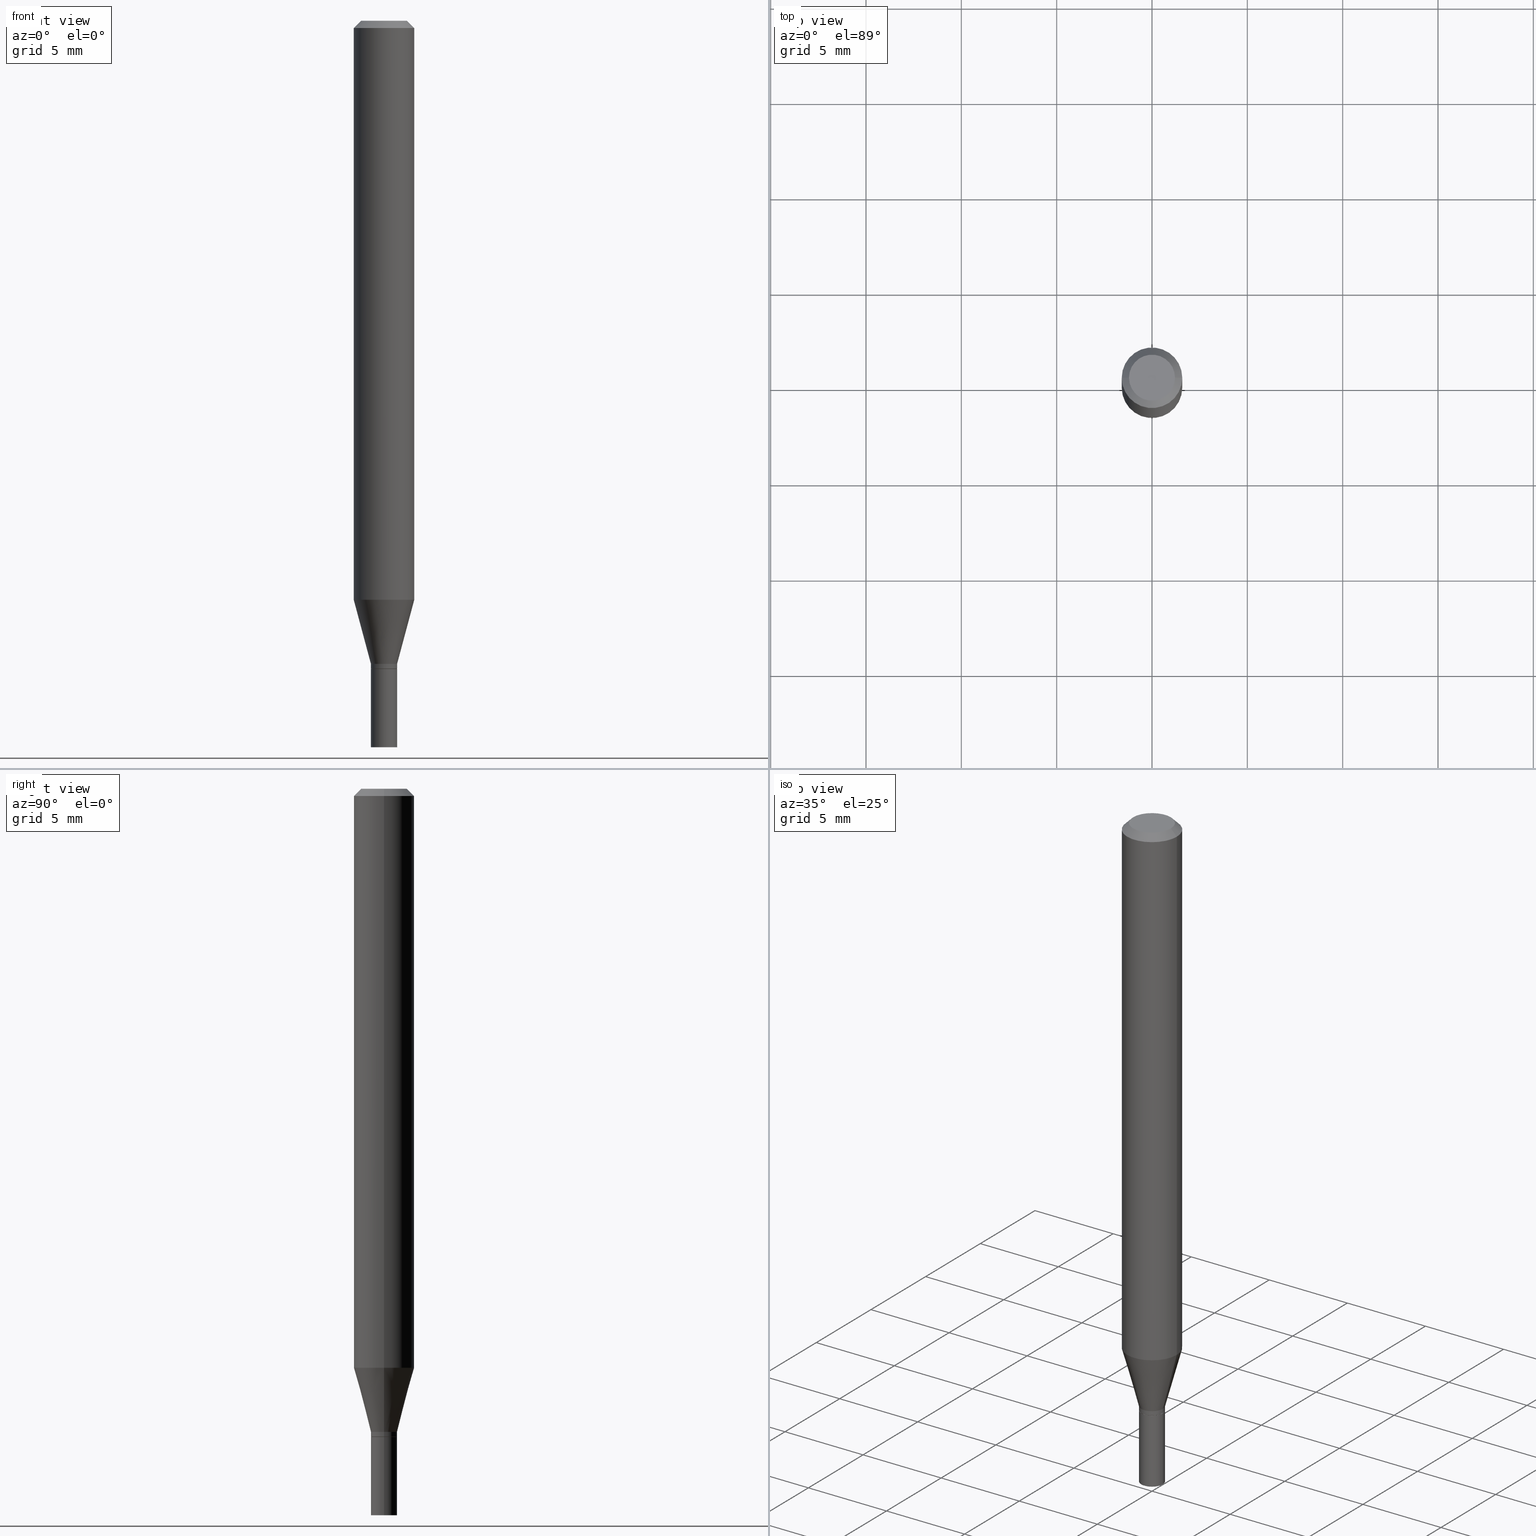
[diagram: canonical four-view strip — front | top / right | iso, engineering-drawing reading convention]
A machine part, canonical four-view strip (front | top / right | iso — engineering-drawing reading convention). The complete STEP part file that produces these views, byte-faithful:
ISO-10303-21;
HEADER;
FILE_DESCRIPTION (( 'STEP AP203' ),
    '1' );
FILE_NAME ('00563.STEP',
    '2024-03-19T21:43:39',
    ( '' ),
    ( '' ),
    'SwSTEP 2.0',
    'SolidWorks 2023',
    '' );
FILE_SCHEMA (( 'CONFIG_CONTROL_DESIGN' ));
ENDSEC;

DATA;
#1 = APPROVAL_STATUS ( 'not_yet_approved' ) ;
#2 = EDGE_CURVE ( 'NONE', #42, #402, #408, .T. ) ;
#3 = DIRECTION ( 'NONE',  ( -0.2588190451025207395, 5.211531920934546309E-15, 0.9659258262890682012 ) ) ;
#4 = ORIENTED_EDGE ( 'NONE', *, *, #2, .F. ) ;
#5 = AXIS2_PLACEMENT_3D ( 'NONE', #310, #301, #225 ) ;
#6 = CARTESIAN_POINT ( 'NONE',  ( 3.247582574613861342E-29, -4.636687217983698072E-15, -1.328000000000000069 ) ) ;
#7 = ORIENTED_EDGE ( 'NONE', *, *, #36, .F. ) ;
#8 = DIRECTION ( 'NONE',  ( -2.445468806185136877E-29, 3.491481338843145188E-15, 1.000000000000000000 ) ) ;
#9 = ORIENTED_EDGE ( 'NONE', *, *, #396, .T. ) ;
#10 = PLANE ( 'NONE',  #290 ) ;
#11 = ORIENTED_EDGE ( 'NONE', *, *, #101, .F. ) ;
#12 = DIRECTION ( 'NONE',  ( 2.438088387897960049E-29, -3.491481338843145188E-15, -1.000000000000000000 ) ) ;
#13 = AXIS2_PLACEMENT_3D ( 'NONE', #224, #446, #450 ) ;
#14 = VECTOR ( 'NONE', #316, 39.37007874015748854 ) ;
#15 = CARTESIAN_POINT ( 'NONE',  ( -5.757869704046039586E-45, 8.220711943787967025E-31, 2.354505479474161294E-16 ) ) ;
#16 = DIRECTION ( 'NONE',  ( 1.000000000000000000, -6.982962677686261189E-15, 0.000000000000000000 ) ) ;
#17 = DIRECTION ( 'NONE',  ( -2.445468806185136597E-29, 3.491481338843145583E-15, 1.000000000000000000 ) ) ;
#18 = EDGE_CURVE ( 'NONE', #124, #442, #256, .T. ) ;
#19 = DIRECTION ( 'NONE',  ( 1.000000000000000000, -6.982962677686262766E-15, 0.000000000000000000 ) ) ;
#20 = CYLINDRICAL_SURFACE ( 'NONE', #33, 0.02699999999999992684 ) ;
#21 = DIRECTION ( 'NONE',  ( -1.000000000000000000, 6.982962677686266711E-15, 0.000000000000000000 ) ) ;
#22 = VECTOR ( 'NONE', #198, 39.37007874015748143 ) ;
#23 = DIRECTION ( 'NONE',  ( -2.445468806185136597E-29, 3.491481338843145583E-15, 1.000000000000000000 ) ) ;
#24 = APPROVAL ( #458, 'UNSPECIFIED' ) ;
#25 = CARTESIAN_POINT ( 'NONE',  ( -0.02699999999999992337, -4.478009752047480997E-15, -1.337500000000000133 ) ) ;
#26 = EDGE_LOOP ( 'NONE', ( #414, #274, #409, #326 ) ) ;
#27 = CARTESIAN_POINT ( 'NONE',  ( 0.02649999999999999925, -4.856650542330814622E-15, -1.338000000000000078 ) ) ;
#28 = VECTOR ( 'NONE', #440, 39.37007874015748143 ) ;
#29 = APPLICATION_PROTOCOL_DEFINITION ( 'international standard', 'config_control_design', 1994, #110 ) ;
#30 = DIRECTION ( 'NONE',  ( 1.000000000000000000, -6.982962677686266711E-15, 0.000000000000000000 ) ) ;
#31 = CALENDAR_DATE ( 2024, 19, 3 ) ;
#32 = APPROVAL_DATE_TIME ( #113, #323 ) ;
#33 = AXIS2_PLACEMENT_3D ( 'NONE', #94, #235, #447 ) ;
#34 = AXIS2_PLACEMENT_3D ( 'NONE', #350, #23, #244 ) ;
#35 = EDGE_LOOP ( 'NONE', ( #266, #77, #74, #44 ) ) ;
#36 = EDGE_CURVE ( 'NONE', #402, #146, #220, .T. ) ;
#37 = PERSON_AND_ORGANIZATION_ROLE ( 'design_owner' ) ;
#38 = DIRECTION ( 'NONE',  ( -2.445468806185136877E-29, 3.491481338843145188E-15, 1.000000000000000000 ) ) ;
#39 = CONICAL_SURFACE ( 'NONE', #79, 0.02649999999999999925, 0.7853981633974739252 ) ;
#40 = CARTESIAN_POINT ( 'NONE',  ( 0.02699999999999999969, -1.885399922975291894E-16, 1.316567729464902510E-30 ) ) ;
#41 = FACE_OUTER_BOUND ( 'NONE', #152, .T. ) ;
#42 = VERTEX_POINT ( 'NONE', #252 ) ;
#43 = CARTESIAN_POINT ( 'NONE',  ( -0.04749999999999999362, 3.578768372314215436E-16, 2.354505479474137135E-16 ) ) ;
#44 = ORIENTED_EDGE ( 'NONE', *, *, #396, .F. ) ;
#45 = DIRECTION ( 'NONE',  ( -2.445468806185136877E-29, 3.491481338843145188E-15, 1.000000000000000000 ) ) ;
#46 = DIRECTION ( 'NONE',  ( 1.000000000000000000, -6.982962677686267499E-15, 4.852736867747366768E-29 ) ) ;
#47 = ADVANCED_FACE ( 'NONE', ( #41 ), #381, .T. ) ;
#48 = APPLICATION_CONTEXT ( 'configuration controlled 3d designs of mechanical parts and assemblies' ) ;
#49 = PLANE ( 'NONE',  #375 ) ;
#50 = VECTOR ( 'NONE', #3, 39.37007874015748854 ) ;
#51 = VECTOR ( 'NONE', #96, 39.37007874015748143 ) ;
#52 = ADVANCED_FACE ( 'NONE', ( #196 ), #20, .T. ) ;
#53 = DIRECTION ( 'NONE',  ( -2.438088387897960049E-29, 3.491481338843145188E-15, 1.000000000000000000 ) ) ;
#54 = DIRECTION ( 'NONE',  ( 1.000000000000000000, -6.982962677686279332E-15, 0.000000000000000000 ) ) ;
#55 = CARTESIAN_POINT ( 'NONE',  ( 0.02699999999999992684, -4.825227210281226768E-15, -1.328000000000000069 ) ) ;
#56 = ADVANCED_FACE ( 'NONE', ( #238 ), #321, .T. ) ;
#57 = CIRCLE ( 'NONE', #114, 0.02699999999999992684 ) ;
#58 = DIRECTION ( 'NONE',  ( -2.445468806185136597E-29, 3.491481338843145583E-15, 1.000000000000000000 ) ) ;
#59 = FACE_OUTER_BOUND ( 'NONE', #373, .T. ) ;
#60 = FACE_OUTER_BOUND ( 'NONE', #370, .T. ) ;
#61 = PERSON_AND_ORGANIZATION_ROLE ( 'classification_officer' ) ;
#62 = AXIS2_PLACEMENT_3D ( 'NONE', #390, #67, #19 ) ;
#63 = APPROVAL_PERSON_ORGANIZATION ( #431, #323, #100 ) ;
#64 = COORDINATED_UNIVERSAL_TIME_OFFSET ( 5, 0, .BEHIND. ) ;
#65 = ORIENTED_EDGE ( 'NONE', *, *, #465, .F. ) ;
#66 = COORDINATED_UNIVERSAL_TIME_OFFSET ( 5, 0, .BEHIND. ) ;
#67 = DIRECTION ( 'NONE',  ( -2.445468806185136597E-29, 3.491481338843145583E-15, 1.000000000000000000 ) ) ;
#68 = CC_DESIGN_PERSON_AND_ORGANIZATION_ASSIGNMENT ( #295, #37, ( #160 ) ) ;
#69 = AXIS2_PLACEMENT_3D ( 'NONE', #202, #428, #139 ) ;
#70 = CARTESIAN_POINT ( 'NONE',  ( 3.247582574613861342E-29, -4.636687217983698072E-15, -1.328000000000000069 ) ) ;
#71 = LOCAL_TIME ( 17, 43, 39.00000000000000000, #147 ) ;
#72 = ORIENTED_EDGE ( 'NONE', *, *, #379, .F. ) ;
#73 = ORIENTED_EDGE ( 'NONE', *, *, #327, .T. ) ;
#74 = ORIENTED_EDGE ( 'NONE', *, *, #88, .F. ) ;
#75 = FACE_OUTER_BOUND ( 'NONE', #318, .T. ) ;
#76 = ORIENTED_EDGE ( 'NONE', *, *, #427, .T. ) ;
#77 = ORIENTED_EDGE ( 'NONE', *, *, #2, .T. ) ;
#78 = ORIENTED_EDGE ( 'NONE', *, *, #382, .T. ) ;
#79 = AXIS2_PLACEMENT_3D ( 'NONE', #343, #236, #137 ) ;
#80 = LINE ( 'NONE', #223, #248 ) ;
#81 = LOCAL_TIME ( 17, 43, 39.00000000000000000, #141 ) ;
#82 = CARTESIAN_POINT ( 'NONE',  ( 0.06250000000000000000, -4.888073874380388472E-16, -0.01499999999999999944 ) ) ;
#83 = ORIENTED_EDGE ( 'NONE', *, *, #382, .F. ) ;
#84 = DIRECTION ( 'NONE',  ( -2.445468806185136597E-29, 3.491481338843145583E-15, 1.000000000000000000 ) ) ;
#85 = ADVANCED_FACE ( 'NONE', ( #243 ), #131, .T. ) ;
#86 = DIMENSIONAL_EXPONENTS ( 1.000000000000000000, 0.000000000000000000, 0.000000000000000000, 0.000000000000000000, 0.000000000000000000, 0.000000000000000000, 0.000000000000000000 ) ;
#87 = CARTESIAN_POINT ( 'NONE',  ( 0.02699999999999999969, -5.425762000562247662E-15, -1.500000000000000222 ) ) ;
#88 = EDGE_CURVE ( 'NONE', #146, #402, #240, .T. ) ;
#89 = EDGE_LOOP ( 'NONE', ( #367, #453, #303, #270 ) ) ;
#90 =( LENGTH_UNIT ( ) NAMED_UNIT ( * ) SI_UNIT ( $, .METRE. ) );
#91 = VECTOR ( 'NONE', #380, 39.37007874015748143 ) ;
#92 = DIRECTION ( 'NONE',  ( -2.445468806185136597E-29, 3.491481338843145583E-15, 1.000000000000000000 ) ) ;
#93 = CARTESIAN_POINT ( 'NONE',  ( 0.02649999999999999925, -4.856650542330814622E-15, -1.338000000000000078 ) ) ;
#94 = CARTESIAN_POINT ( 'NONE',  ( 0.000000000000000000, 0.000000000000000000, 0.000000000000000000 ) ) ;
#95 =( NAMED_UNIT ( * ) SI_UNIT ( $, .STERADIAN. ) SOLID_ANGLE_UNIT ( ) );
#96 = DIRECTION ( 'NONE',  ( -2.445468806185136877E-29, 3.491481338843145188E-15, 1.000000000000000000 ) ) ;
#97 = AXIS2_PLACEMENT_3D ( 'NONE', #231, #53, #424 ) ;
#98 = CC_DESIGN_APPROVAL ( #232, ( #205 ) ) ;
#99 = LINE ( 'NONE', #55, #14 ) ;
#100 = APPROVAL_ROLE ( '' ) ;
#101 = EDGE_CURVE ( 'NONE', #260, #250, #336, .T. ) ;
#102 = PERSON_AND_ORGANIZATION ( #333, #199 ) ;
#103 = AXIS2_PLACEMENT_3D ( 'NONE', #284, #395, #200 ) ;
#104 = LOCAL_TIME ( 17, 43, 39.00000000000000000, #66 ) ;
#105 = EDGE_CURVE ( 'NONE', #451, #368, #344, .T. ) ;
#106 = EDGE_LOOP ( 'NONE', ( #463, #65 ) ) ;
#107 = CARTESIAN_POINT ( 'NONE',  ( 3.668203209277704895E-29, -5.237222008264718177E-15, -1.500000000000000222 ) ) ;
#108 = CC_DESIGN_DATE_AND_TIME_ASSIGNMENT ( #292, #178, ( #376 ) ) ;
#109 = ORIENTED_EDGE ( 'NONE', *, *, #126, .T. ) ;
#110 = APPLICATION_CONTEXT ( 'configuration controlled 3d designs of mechanical parts and assemblies' ) ;
#111 = ORIENTED_EDGE ( 'NONE', *, *, #88, .T. ) ;
#112 = VERTEX_POINT ( 'NONE', #43 ) ;
#113 = DATE_AND_TIME ( #145, #286 ) ;
#114 = AXIS2_PLACEMENT_3D ( 'NONE', #6, #84, #337 ) ;
#115 = ORIENTED_EDGE ( 'NONE', *, *, #101, .T. ) ;
#116 = DIRECTION ( 'NONE',  ( -2.445468806185136597E-29, 3.491481338843145583E-15, 1.000000000000000000 ) ) ;
#117 = LINE ( 'NONE', #125, #278 ) ;
#118 = VERTEX_POINT ( 'NONE', #82 ) ;
#119 = PLANE ( 'NONE',  #298 ) ;
#120 = DESIGN_CONTEXT ( 'detailed design', #110, 'design' ) ;
#121 = EDGE_CURVE ( 'NONE', #219, #339, #305, .T. ) ;
#122 = LINE ( 'NONE', #267, #191 ) ;
#123 = AXIS2_PLACEMENT_3D ( 'NONE', #168, #320, #389 ) ;
#124 = VERTEX_POINT ( 'NONE', #272 ) ;
#125 = CARTESIAN_POINT ( 'NONE',  ( -0.06250000000000000000, 3.840629472727444916E-16, -0.01499999999999999944 ) ) ;
#126 = EDGE_CURVE ( 'NONE', #442, #124, #364, .T. ) ;
#127 = FACE_OUTER_BOUND ( 'NONE', #263, .T. ) ;
#128 = DIRECTION ( 'NONE',  ( -2.445468806185136597E-29, 3.491481338843145583E-15, 1.000000000000000000 ) ) ;
#129 = ORIENTED_EDGE ( 'NONE', *, *, #154, .F. ) ;
#130 = CARTESIAN_POINT ( 'NONE',  ( 3.668203209277705088E-31, -5.237222008264718399E-17, -0.01499999999999999944 ) ) ;
#131 = CONICAL_SURFACE ( 'NONE', #462, 0.02699999999999992684, 0.2617993877991494633 ) ;
#132 = CARTESIAN_POINT ( 'NONE',  ( 3.272037262675712888E-29, -4.671602031372128143E-15, -1.338000000000000078 ) ) ;
#133 = LENGTH_MEASURE_WITH_UNIT ( LENGTH_MEASURE( 0.02539999999999999897 ), #90 );
#134 = CARTESIAN_POINT ( 'NONE',  ( -5.757869704046039586E-45, 8.220711943787967025E-31, 2.354505479474161294E-16 ) ) ;
#135 = FACE_OUTER_BOUND ( 'NONE', #253, .T. ) ;
#136 = EDGE_CURVE ( 'NONE', #188, #118, #210, .T. ) ;
#137 = DIRECTION ( 'NONE',  ( 1.000000000000000000, -6.982962677686277755E-15, 0.000000000000000000 ) ) ;
#138 = EDGE_CURVE ( 'NONE', #257, #42, #264, .T. ) ;
#139 = DIRECTION ( 'NONE',  ( 1.000000000000000000, -6.982962677686280910E-15, 0.000000000000000000 ) ) ;
#140 = PERSON_AND_ORGANIZATION_ROLE ( 'creator' ) ;
#141 = COORDINATED_UNIVERSAL_TIME_OFFSET ( 5, 0, .BEHIND. ) ;
#142 = AXIS2_PLACEMENT_3D ( 'NONE', #15, #452, #46 ) ;
#143 = CC_DESIGN_PERSON_AND_ORGANIZATION_ASSIGNMENT ( #403, #288, ( #205 ) ) ;
#144 = LOCAL_TIME ( 17, 43, 39.00000000000000000, #64 ) ;
#145 = CALENDAR_DATE ( 2024, 19, 3 ) ;
#146 = VERTEX_POINT ( 'NONE', #195 ) ;
#147 = COORDINATED_UNIVERSAL_TIME_OFFSET ( 5, 0, .BEHIND. ) ;
#148 = APPROVAL_DATE_TIME ( #325, #24 ) ;
#149 = DIRECTION ( 'NONE',  ( -2.445468806185136597E-29, 3.491481338843145583E-15, 1.000000000000000000 ) ) ;
#150 = CIRCLE ( 'NONE', #142, 0.04749999999999999362 ) ;
#151 = DIRECTION ( 'NONE',  ( 1.000000000000000000, -6.982962677686265922E-15, 4.876176775795936353E-29 ) ) ;
#152 = EDGE_LOOP ( 'NONE', ( #261, #365, #11, #404 ) ) ;
#153 = DIRECTION ( 'NONE',  ( 1.000000000000000000, -6.982962677686266711E-15, 4.876176775795935793E-29 ) ) ;
#154 = EDGE_CURVE ( 'NONE', #339, #219, #357, .T. ) ;
#155 = CYLINDRICAL_SURFACE ( 'NONE', #5, 0.02699999999999999969 ) ;
#156 = ADVANCED_FACE ( 'NONE', ( #60 ), #245, .T. ) ;
#157 = AXIS2_PLACEMENT_3D ( 'NONE', #448, #92, #16 ) ;
#158 = CARTESIAN_POINT ( 'NONE',  ( 0.06250000000000000000, -4.364351673553916694E-16, 3.047610484872459871E-30 ) ) ;
#159 = ORIENTED_EDGE ( 'NONE', *, *, #201, .F. ) ;
#160 = PRODUCT ( '00563', '00563', '', ( #251 ) ) ;
#161 = CARTESIAN_POINT ( 'NONE',  ( -0.02699999999999999969, -4.762565481163196334E-15, -1.338000000000000078 ) ) ;
#162 = DIRECTION ( 'NONE',  ( 1.000000000000000000, -6.982962677686266711E-15, 0.000000000000000000 ) ) ;
#163 = AXIS2_PLACEMENT_3D ( 'NONE', #399, #359, #30 ) ;
#164 = CARTESIAN_POINT ( 'NONE',  ( 3.272037262675712888E-29, -4.671602031372128143E-15, -1.338000000000000078 ) ) ;
#165 = EDGE_CURVE ( 'NONE', #42, #257, #57, .T. ) ;
#166 = DIRECTION ( 'NONE',  ( 1.000000000000000000, -6.982962677686277755E-15, 0.000000000000000000 ) ) ;
#167 = EDGE_CURVE ( 'NONE', #442, #42, #259, .T. ) ;
#168 = CARTESIAN_POINT ( 'NONE',  ( 3.272037262675712888E-29, -4.671602031372128143E-15, -1.338000000000000078 ) ) ;
#169 = AXIS2_PLACEMENT_3D ( 'NONE', #132, #233, #388 ) ;
#170 = APPROVAL_STATUS ( 'not_yet_approved' ) ;
#171 = DATE_AND_TIME ( #31, #71 ) ;
#172 = PERSON_AND_ORGANIZATION ( #333, #199 ) ;
#173 = ORIENTED_EDGE ( 'NONE', *, *, #311, .T. ) ;
#174 = AXIS2_PLACEMENT_3D ( 'NONE', #319, #455, #21 ) ;
#175 = CC_DESIGN_APPROVAL ( #24, ( #376 ) ) ;
#176 = ADVANCED_BREP_SHAPE_REPRESENTATION ( '00563', ( #430, #280, #306 ), #221 ) ;
#177 = ADVANCED_FACE ( 'NONE', ( #127 ), #49, .F. ) ;
#178 = DATE_TIME_ROLE ( 'classification_date' ) ;
#179 = CARTESIAN_POINT ( 'NONE',  ( 2.923587783542086622E-29, -4.174108523850133238E-15, -1.195512196331304677 ) ) ;
#180 = EDGE_CURVE ( 'NONE', #219, #260, #300, .T. ) ;
#181 = CARTESIAN_POINT ( 'NONE',  ( -0.02699999999999992684, 1.918465386552265303E-16, -1.328112474368820963E-30 ) ) ;
#182 = ORIENTED_EDGE ( 'NONE', *, *, #214, .F. ) ;
#183 = CYLINDRICAL_SURFACE ( 'NONE', #349, 0.06250000000000000000 ) ;
#184 = ORIENTED_EDGE ( 'NONE', *, *, #36, .T. ) ;
#185 = DIRECTION ( 'NONE',  ( -2.445468806185136597E-29, 3.491481338843145583E-15, 1.000000000000000000 ) ) ;
#186 = CC_DESIGN_PERSON_AND_ORGANIZATION_ASSIGNMENT ( #360, #61, ( #376 ) ) ;
#187 = ORIENTED_EDGE ( 'NONE', *, *, #438, .T. ) ;
#188 = VERTEX_POINT ( 'NONE', #340 ) ;
#189 = FACE_OUTER_BOUND ( 'NONE', #307, .T. ) ;
#190 = ORIENTED_EDGE ( 'NONE', *, *, #126, .F. ) ;
#191 = VECTOR ( 'NONE', #346, 39.37007874015748143 ) ;
#192 = LINE ( 'NONE', #226, #28 ) ;
#193 = CARTESIAN_POINT ( 'NONE',  ( 3.247582574613861342E-29, -4.636687217983698072E-15, -1.328000000000000069 ) ) ;
#194 = ORIENTED_EDGE ( 'NONE', *, *, #136, .F. ) ;
#195 = CARTESIAN_POINT ( 'NONE',  ( 0.06250000000000000000, -4.610543691205524908E-15, -1.195512196331304677 ) ) ;
#196 = FACE_OUTER_BOUND ( 'NONE', #26, .T. ) ;
#197 = CARTESIAN_POINT ( 'NONE',  ( 0.04749999999999999362, -4.035134999187574186E-16, 2.354505479474186932E-16 ) ) ;
#198 = DIRECTION ( 'NONE',  ( 0.7071067811865656694, -2.468850131082446387E-15, 0.7071067811865294761 ) ) ;
#199 = ORGANIZATION ( 'UNSPECIFIED', 'UNSPECIFIED', '' ) ;
#200 = DIRECTION ( 'NONE',  ( 1.000000000000000000, -6.982962677686266711E-15, 4.876176775795935793E-29 ) ) ;
#201 = EDGE_CURVE ( 'NONE', #339, #250, #369, .T. ) ;
#202 = CARTESIAN_POINT ( 'NONE',  ( 3.270814528272620647E-29, -4.669856290702708218E-15, -1.337500000000000133 ) ) ;
#203 = FACE_OUTER_BOUND ( 'NONE', #383, .T. ) ;
#204 = DIRECTION ( 'NONE',  ( 1.000000000000000000, 0.000000000000000000, 0.000000000000000000 ) ) ;
#205 = PRODUCT_DEFINITION_FORMATION_WITH_SPECIFIED_SOURCE ( 'ANY', '', #160, .NOT_KNOWN. ) ;
#206 = PERSON_AND_ORGANIZATION ( #333, #199 ) ;
#207 = CALENDAR_DATE ( 2024, 19, 3 ) ;
#208 = ORIENTED_EDGE ( 'NONE', *, *, #165, .F. ) ;
#209 = CLOSED_SHELL ( 'NONE', ( #47, #177, #255, #227 ) ) ;
#210 = CIRCLE ( 'NONE', #163, 0.06250000000000000000 ) ;
#211 = DIRECTION ( 'NONE',  ( -2.445468806185136597E-29, 3.491481338843145583E-15, 1.000000000000000000 ) ) ;
#212 = CALENDAR_DATE ( 2024, 19, 3 ) ;
#213 = CARTESIAN_POINT ( 'NONE',  ( -0.02699999999999992684, -4.444840679328471640E-15, -1.328000000000000069 ) ) ;
#214 = EDGE_CURVE ( 'NONE', #112, #188, #117, .T. ) ;
#215 = CARTESIAN_POINT ( 'NONE',  ( 0.02699999999999999969, -4.860142023669657629E-15, -1.338000000000000078 ) ) ;
#216 = ORIENTED_EDGE ( 'NONE', *, *, #180, .T. ) ;
#217 = CARTESIAN_POINT ( 'NONE',  ( 1.885399922975619024E-16, 0.02699999999999532982, -1.338000000000000078 ) ) ;
#218 = ORIENTED_EDGE ( 'NONE', *, *, #237, .F. ) ;
#219 = VERTEX_POINT ( 'NONE', #87 ) ;
#220 = CIRCLE ( 'NONE', #62, 0.06250000000000000000 ) ;
#221 =( GEOMETRIC_REPRESENTATION_CONTEXT ( 3 ) GLOBAL_UNCERTAINTY_ASSIGNED_CONTEXT ( ( #348 ) ) GLOBAL_UNIT_ASSIGNED_CONTEXT ( ( #281, #312, #95 ) ) REPRESENTATION_CONTEXT ( 'NONE', 'WORKASPACE' ) );
#222 = ORIENTED_EDGE ( 'NONE', *, *, #379, .T. ) ;
#223 = CARTESIAN_POINT ( 'NONE',  ( -0.06250000000000000000, 4.440892098500626162E-16, -3.074334431409316114E-30 ) ) ;
#224 = CARTESIAN_POINT ( 'NONE',  ( 3.668203209277704895E-29, -5.237222008264718177E-15, -1.500000000000000222 ) ) ;
#225 = DIRECTION ( 'NONE',  ( 1.000000000000000000, -6.982962677686266711E-15, 4.876176775795935232E-29 ) ) ;
#226 = CARTESIAN_POINT ( 'NONE',  ( -0.02649999999999999925, -4.483308206395701821E-15, -1.338000000000000078 ) ) ;
#227 = ADVANCED_FACE ( 'NONE', ( #75 ), #10, .F. ) ;
#228 = ORIENTED_EDGE ( 'NONE', *, *, #237, .T. ) ;
#229 = AXIS2_PLACEMENT_3D ( 'NONE', #392, #411, #459 ) ;
#230 = CONICAL_SURFACE ( 'NONE', #433, 0.02649999999999999925, 0.7853981633974739252 ) ;
#231 = CARTESIAN_POINT ( 'NONE',  ( 3.272037262675712888E-29, -4.671602031372128143E-15, -1.338000000000000078 ) ) ;
#232 = APPROVAL ( #1, 'UNSPECIFIED' ) ;
#233 = DIRECTION ( 'NONE',  ( -2.445468806185136597E-29, 3.491481338843145583E-15, 1.000000000000000000 ) ) ;
#234 = DIRECTION ( 'NONE',  ( -2.445468806185136597E-29, 3.491481338843145583E-15, 1.000000000000000000 ) ) ;
#235 = DIRECTION ( 'NONE',  ( -2.445468806185136597E-29, 3.491481338843145583E-15, 1.000000000000000000 ) ) ;
#236 = DIRECTION ( 'NONE',  ( -2.445468806185136597E-29, 3.491481338843145583E-15, 1.000000000000000000 ) ) ;
#237 = EDGE_CURVE ( 'NONE', #368, #442, #192, .T. ) ;
#238 = FACE_OUTER_BOUND ( 'NONE', #89, .T. ) ;
#239 = PLANE ( 'NONE',  #97 ) ;
#240 = CIRCLE ( 'NONE', #314, 0.06250000000000000000 ) ;
#241 = ADVANCED_FACE ( 'NONE', ( #419 ), #183, .T. ) ;
#242 = CC_DESIGN_SECURITY_CLASSIFICATION ( #376, ( #205 ) ) ;
#243 = FACE_OUTER_BOUND ( 'NONE', #35, .T. ) ;
#244 = DIRECTION ( 'NONE',  ( 1.000000000000000000, -6.982962677686279332E-15, 0.000000000000000000 ) ) ;
#245 = CYLINDRICAL_SURFACE ( 'NONE', #432, 0.02699999999999992684 ) ;
#246 = SECURITY_CLASSIFICATION_LEVEL ( 'unclassified' ) ;
#247 = APPROVAL_DATE_TIME ( #405, #232 ) ;
#248 = VECTOR ( 'NONE', #45, 39.37007874015748143 ) ;
#249 = CIRCLE ( 'NONE', #123, 0.02649999999999999925 ) ;
#250 = VERTEX_POINT ( 'NONE', #161 ) ;
#251 = MECHANICAL_CONTEXT ( 'NONE', #48, 'mechanical' ) ;
#252 = CARTESIAN_POINT ( 'NONE',  ( -0.02699999999999992684, -4.087429996664271131E-15, -1.328000000000000069 ) ) ;
#253 = EDGE_LOOP ( 'NONE', ( #4, #332, #9, #7 ) ) ;
#254 = CALENDAR_DATE ( 2024, 19, 3 ) ;
#255 = ADVANCED_FACE ( 'NONE', ( #271 ), #155, .T. ) ;
#256 = CIRCLE ( 'NONE', #285, 0.02699999999999992337 ) ;
#257 = VERTEX_POINT ( 'NONE', #443 ) ;
#258 = EDGE_LOOP ( 'NONE', ( #73, #464 ) ) ;
#259 = LINE ( 'NONE', #181, #385 ) ;
#260 = VERTEX_POINT ( 'NONE', #215 ) ;
#261 = ORIENTED_EDGE ( 'NONE', *, *, #121, .T. ) ;
#262 = CARTESIAN_POINT ( 'NONE',  ( 3.316907271900976096E-16, 0.04749999999999999362, -4.812008962134135024E-17 ) ) ;
#263 = EDGE_LOOP ( 'NONE', ( #361, #129 ) ) ;
#264 = CIRCLE ( 'NONE', #425, 0.02699999999999992684 ) ;
#265 = AXIS2_PLACEMENT_3D ( 'NONE', #134, #351, #457 ) ;
#266 = ORIENTED_EDGE ( 'NONE', *, *, #138, .T. ) ;
#267 = CARTESIAN_POINT ( 'NONE',  ( 0.06250000000000000000, -4.811533449433679005E-16, -0.01499999999999999944 ) ) ;
#268 = CARTESIAN_POINT ( 'NONE',  ( 0.000000000000000000, 0.000000000000000000, 0.000000000000000000 ) ) ;
#269 = DIRECTION ( 'NONE',  ( -2.445468806185136597E-29, 3.491481338843145583E-15, 1.000000000000000000 ) ) ;
#270 = ORIENTED_EDGE ( 'NONE', *, *, #136, .T. ) ;
#271 = FACE_OUTER_BOUND ( 'NONE', #309, .T. ) ;
#272 = CARTESIAN_POINT ( 'NONE',  ( 0.02699999999999992337, -4.858396283000236125E-15, -1.337500000000000133 ) ) ;
#273 = ORIENTED_EDGE ( 'NONE', *, *, #282, .T. ) ;
#274 = ORIENTED_EDGE ( 'NONE', *, *, #167, .T. ) ;
#275 = DIRECTION ( 'NONE',  ( 1.000000000000000000, -6.982962677686265922E-15, 4.876176775795935793E-29 ) ) ;
#276 = PRODUCT_DEFINITION_SHAPE ( 'NONE', 'NONE',  #296 ) ;
#277 = ADVANCED_FACE ( 'NONE', ( #308 ), #119, .F. ) ;
#278 = VECTOR ( 'NONE', #412, 39.37007874015748143 ) ;
#279 = CARTESIAN_POINT ( 'NONE',  ( -0.02699999999999999969, -4.762565481163196334E-15, -1.500000000000000222 ) ) ;
#280 = MANIFOLD_SOLID_BREP ( 'Body-Move/Copy2[2]', #374 ) ;
#281 =( CONVERSION_BASED_UNIT ( 'INCH', #133 ) LENGTH_UNIT ( ) NAMED_UNIT ( #86 ) );
#282 = EDGE_CURVE ( 'NONE', #402, #188, #80, .T. ) ;
#283 = LINE ( 'NONE', #397, #51 ) ;
#284 = CARTESIAN_POINT ( 'NONE',  ( 0.000000000000000000, 0.000000000000000000, 0.000000000000000000 ) ) ;
#285 = AXIS2_PLACEMENT_3D ( 'NONE', #434, #116, #313 ) ;
#286 = LOCAL_TIME ( 17, 43, 39.00000000000000000, #289 ) ;
#287 = CARTESIAN_POINT ( 'NONE',  ( 3.272037262675712888E-29, -4.671602031372128143E-15, -1.338000000000000078 ) ) ;
#288 = PERSON_AND_ORGANIZATION_ROLE ( 'creator' ) ;
#289 = COORDINATED_UNIVERSAL_TIME_OFFSET ( 5, 0, .BEHIND. ) ;
#290 = AXIS2_PLACEMENT_3D ( 'NONE', #217, #378, #372 ) ;
#291 = EDGE_CURVE ( 'NONE', #377, #118, #122, .T. ) ;
#292 = DATE_AND_TIME ( #207, #104 ) ;
#293 = ORIENTED_EDGE ( 'NONE', *, *, #154, .T. ) ;
#294 = ORIENTED_EDGE ( 'NONE', *, *, #465, .T. ) ;
#295 = PERSON_AND_ORGANIZATION ( #333, #199 ) ;
#296 = PRODUCT_DEFINITION ( 'UNKNOWN', '', #205, #120 ) ;
#297 = ORIENTED_EDGE ( 'NONE', *, *, #18, .F. ) ;
#298 = AXIS2_PLACEMENT_3D ( 'NONE', #262, #12, #415 ) ;
#299 = DIRECTION ( 'NONE',  ( 1.000000000000000000, -6.982962677686262766E-15, 0.000000000000000000 ) ) ;
#300 = LINE ( 'NONE', #40, #437 ) ;
#301 = DIRECTION ( 'NONE',  ( -2.445468806185136597E-29, 3.491481338843145583E-15, 1.000000000000000000 ) ) ;
#302 = ORIENTED_EDGE ( 'NONE', *, *, #105, .T. ) ;
#303 = ORIENTED_EDGE ( 'NONE', *, *, #214, .T. ) ;
#304 = DIRECTION ( 'NONE',  ( -2.438088387897960049E-29, 3.491481338843145188E-15, 1.000000000000000000 ) ) ;
#305 = CIRCLE ( 'NONE', #13, 0.02699999999999999969 ) ;
#306 = AXIS2_PLACEMENT_3D ( 'NONE', #401, #331, #204 ) ;
#307 = EDGE_LOOP ( 'NONE', ( #218, #294, #222, #190 ) ) ;
#308 = FACE_OUTER_BOUND ( 'NONE', #258, .T. ) ;
#309 = EDGE_LOOP ( 'NONE', ( #159, #293, #216, #342 ) ) ;
#310 = CARTESIAN_POINT ( 'NONE',  ( 0.000000000000000000, 0.000000000000000000, 0.000000000000000000 ) ) ;
#311 = EDGE_CURVE ( 'NONE', #146, #118, #417, .T. ) ;
#312 =( NAMED_UNIT ( * ) PLANE_ANGLE_UNIT ( ) SI_UNIT ( $, .RADIAN. ) );
#313 = DIRECTION ( 'NONE',  ( 1.000000000000000000, -6.982962677686280910E-15, 0.000000000000000000 ) ) ;
#314 = AXIS2_PLACEMENT_3D ( 'NONE', #179, #149, #299 ) ;
#315 = CIRCLE ( 'NONE', #358, 0.02699999999999999969 ) ;
#316 = DIRECTION ( 'NONE',  ( 0.2588190451025207395, 1.565188264969626109E-15, 0.9659258262890682012 ) ) ;
#317 = DIRECTION ( 'NONE',  ( 1.000000000000000000, -6.982962677686261189E-15, 0.000000000000000000 ) ) ;
#318 = EDGE_LOOP ( 'NONE', ( #115, #76 ) ) ;
#319 = CARTESIAN_POINT ( 'NONE',  ( 3.668203209277705088E-31, -5.237222008264718399E-17, -0.01499999999999999944 ) ) ;
#320 = DIRECTION ( 'NONE',  ( -2.445468806185136597E-29, 3.491481338843145583E-15, 1.000000000000000000 ) ) ;
#321 = CONICAL_SURFACE ( 'NONE', #229, 0.06250000000000000000, 0.7853981633974405074 ) ;
#322 = APPROVAL_ROLE ( '' ) ;
#323 = APPROVAL ( #170, 'UNSPECIFIED' ) ;
#324 = DIRECTION ( 'NONE',  ( -2.445468806185136597E-29, 3.491481338843145583E-15, 1.000000000000000000 ) ) ;
#325 = DATE_AND_TIME ( #212, #81 ) ;
#326 = ORIENTED_EDGE ( 'NONE', *, *, #438, .F. ) ;
#327 = EDGE_CURVE ( 'NONE', #112, #377, #150, .T. ) ;
#328 = PERSON_AND_ORGANIZATION ( #333, #199 ) ;
#329 = VECTOR ( 'NONE', #38, 39.37007874015748143 ) ;
#330 = ADVANCED_FACE ( 'NONE', ( #189 ), #39, .T. ) ;
#331 = DIRECTION ( 'NONE',  ( 0.000000000000000000, 0.000000000000000000, 1.000000000000000000 ) ) ;
#332 = ORIENTED_EDGE ( 'NONE', *, *, #165, .T. ) ;
#333 = PERSON ( 'UNSPECIFIED', 'UNSPECIFIED', 'UNSPECIFIED', ('UNSPECIFIED'), ('UNSPECIFIED'), ('UNSPECIFIED') ) ;
#334 = CARTESIAN_POINT ( 'NONE',  ( 3.576687321579069994E-29, -5.368277968210015545E-15, -1.500000000000000222 ) ) ;
#335 = ORIENTED_EDGE ( 'NONE', *, *, #311, .F. ) ;
#336 = CIRCLE ( 'NONE', #157, 0.02699999999999999969 ) ;
#337 = DIRECTION ( 'NONE',  ( 1.000000000000000000, -6.982962677686279332E-15, 0.000000000000000000 ) ) ;
#338 = EDGE_LOOP ( 'NONE', ( #413, #466, #78, #182 ) ) ;
#339 = VERTEX_POINT ( 'NONE', #279 ) ;
#340 = CARTESIAN_POINT ( 'NONE',  ( -0.06250000000000000000, -1.669151162116327740E-15, -0.01499999999999999944 ) ) ;
#341 = DIRECTION ( 'NONE',  ( 1.000000000000000000, -6.982962677686279332E-15, 0.000000000000000000 ) ) ;
#342 = ORIENTED_EDGE ( 'NONE', *, *, #427, .F. ) ;
#343 = CARTESIAN_POINT ( 'NONE',  ( 3.272037262675712888E-29, -4.671602031372128143E-15, -1.338000000000000078 ) ) ;
#344 = CIRCLE ( 'NONE', #169, 0.02649999999999999925 ) ;
#345 = ADVANCED_FACE ( 'NONE', ( #426 ), #421, .T. ) ;
#346 = DIRECTION ( 'NONE',  ( 0.7071067811865420216, -7.319954787623237113E-15, -0.7071067811865530128 ) ) ;
#347 = LINE ( 'NONE', #93, #22 ) ;
#348 = UNCERTAINTY_MEASURE_WITH_UNIT (LENGTH_MEASURE( 1.000000000000000082E-05 ), #281, 'distance_accuracy_value', 'NONE');
#349 = AXIS2_PLACEMENT_3D ( 'NONE', #449, #384, #153 ) ;
#350 = CARTESIAN_POINT ( 'NONE',  ( 3.247582574613861342E-29, -4.636687217983698072E-15, -1.328000000000000069 ) ) ;
#351 = DIRECTION ( 'NONE',  ( -2.445468806185136597E-29, 3.491481338843145583E-15, 1.000000000000000000 ) ) ;
#352 = ORIENTED_EDGE ( 'NONE', *, *, #282, .F. ) ;
#353 = ADVANCED_FACE ( 'NONE', ( #391 ), #239, .F. ) ;
#354 = CYLINDRICAL_SURFACE ( 'NONE', #103, 0.06250000000000000000 ) ;
#355 = DIRECTION ( 'NONE',  ( 1.000000000000000000, -6.982962677686261189E-15, 0.000000000000000000 ) ) ;
#356 = ADVANCED_FACE ( 'NONE', ( #59 ), #354, .T. ) ;
#357 = CIRCLE ( 'NONE', #406, 0.02699999999999999969 ) ;
#358 = AXIS2_PLACEMENT_3D ( 'NONE', #164, #17, #317 ) ;
#359 = DIRECTION ( 'NONE',  ( -2.445468806185136597E-29, 3.491481338843145583E-15, 1.000000000000000000 ) ) ;
#360 = PERSON_AND_ORGANIZATION ( #333, #199 ) ;
#361 = ORIENTED_EDGE ( 'NONE', *, *, #121, .F. ) ;
#362 = CC_DESIGN_PERSON_AND_ORGANIZATION_ASSIGNMENT ( #206, #429, ( #205 ) ) ;
#363 = CARTESIAN_POINT ( 'NONE',  ( 0.000000000000000000, 0.000000000000000000, 0.000000000000000000 ) ) ;
#364 = CIRCLE ( 'NONE', #69, 0.02699999999999992337 ) ;
#365 = ORIENTED_EDGE ( 'NONE', *, *, #201, .T. ) ;
#366 = EDGE_LOOP ( 'NONE', ( #352, #184, #173, #194 ) ) ;
#367 = ORIENTED_EDGE ( 'NONE', *, *, #291, .F. ) ;
#368 = VERTEX_POINT ( 'NONE', #387 ) ;
#369 = LINE ( 'NONE', #420, #329 ) ;
#370 = EDGE_LOOP ( 'NONE', ( #371, #109, #187, #208 ) ) ;
#371 = ORIENTED_EDGE ( 'NONE', *, *, #167, .F. ) ;
#372 = DIRECTION ( 'NONE',  ( -1.000000000000000000, 6.982962677686265922E-15, -4.876176775795935793E-29 ) ) ;
#373 = EDGE_LOOP ( 'NONE', ( #111, #273, #83, #335 ) ) ;
#374 = CLOSED_SHELL ( 'NONE', ( #52, #441, #345, #356, #85, #398, #241, #56, #277, #353, #330, #156 ) ) ;
#375 = AXIS2_PLACEMENT_3D ( 'NONE', #334, #304, #275 ) ;
#376 = SECURITY_CLASSIFICATION ( '', '', #246 ) ;
#377 = VERTEX_POINT ( 'NONE', #197 ) ;
#378 = DIRECTION ( 'NONE',  ( 2.438088387897960049E-29, -3.491481338843145188E-15, -1.000000000000000000 ) ) ;
#379 = EDGE_CURVE ( 'NONE', #451, #124, #347, .T. ) ;
#380 = DIRECTION ( 'NONE',  ( -2.445468806185136877E-29, 3.491481338843145188E-15, 1.000000000000000000 ) ) ;
#381 = CYLINDRICAL_SURFACE ( 'NONE', #444, 0.02699999999999999969 ) ;
#382 = EDGE_CURVE ( 'NONE', #118, #188, #454, .T. ) ;
#383 = EDGE_LOOP ( 'NONE', ( #302, #228, #297, #72 ) ) ;
#384 = DIRECTION ( 'NONE',  ( -2.445468806185136597E-29, 3.491481338843145583E-15, 1.000000000000000000 ) ) ;
#385 = VECTOR ( 'NONE', #8, 39.37007874015748143 ) ;
#386 = CIRCLE ( 'NONE', #265, 0.04749999999999999362 ) ;
#387 = CARTESIAN_POINT ( 'NONE',  ( -0.02649999999999999925, -4.480658979221591409E-15, -1.338000000000000078 ) ) ;
#388 = DIRECTION ( 'NONE',  ( 1.000000000000000000, -6.982962677686277755E-15, 0.000000000000000000 ) ) ;
#389 = DIRECTION ( 'NONE',  ( 1.000000000000000000, -6.982962677686277755E-15, 0.000000000000000000 ) ) ;
#390 = CARTESIAN_POINT ( 'NONE',  ( 2.923587783542086622E-29, -4.174108523850133238E-15, -1.195512196331304677 ) ) ;
#391 = FACE_OUTER_BOUND ( 'NONE', #106, .T. ) ;
#392 = CARTESIAN_POINT ( 'NONE',  ( 3.668203209277705088E-31, -5.237222008264718399E-17, -0.01499999999999999944 ) ) ;
#393 = AXIS2_PLACEMENT_3D ( 'NONE', #130, #58, #162 ) ;
#394 = CC_DESIGN_APPROVAL ( #323, ( #296 ) ) ;
#395 = DIRECTION ( 'NONE',  ( -2.445468806185136597E-29, 3.491481338843145583E-15, 1.000000000000000000 ) ) ;
#396 = EDGE_CURVE ( 'NONE', #257, #146, #99, .T. ) ;
#397 = CARTESIAN_POINT ( 'NONE',  ( 0.02699999999999992684, -1.885399922975286717E-16, 1.316567729464899182E-30 ) ) ;
#398 = ADVANCED_FACE ( 'NONE', ( #135 ), #416, .T. ) ;
#399 = CARTESIAN_POINT ( 'NONE',  ( 3.668203209277705088E-31, -5.237222008264718399E-17, -0.01499999999999999944 ) ) ;
#400 = APPROVAL_ROLE ( '' ) ;
#401 = CARTESIAN_POINT ( 'NONE',  ( 0.000000000000000000, 0.000000000000000000, 0.000000000000000000 ) ) ;
#402 = VERTEX_POINT ( 'NONE', #423 ) ;
#403 = PERSON_AND_ORGANIZATION ( #333, #199 ) ;
#404 = ORIENTED_EDGE ( 'NONE', *, *, #180, .F. ) ;
#405 = DATE_AND_TIME ( #254, #144 ) ;
#406 = AXIS2_PLACEMENT_3D ( 'NONE', #107, #324, #355 ) ;
#407 = APPROVAL_PERSON_ORGANIZATION ( #172, #232, #322 ) ;
#408 = LINE ( 'NONE', #213, #50 ) ;
#409 = ORIENTED_EDGE ( 'NONE', *, *, #138, .F. ) ;
#410 = CC_DESIGN_PERSON_AND_ORGANIZATION_ASSIGNMENT ( #328, #140, ( #296 ) ) ;
#411 = DIRECTION ( 'NONE',  ( 2.445468806185136597E-29, -3.491481338843145583E-15, -1.000000000000000000 ) ) ;
#412 = DIRECTION ( 'NONE',  ( -0.7071067811865420216, 2.468850131082199474E-15, -0.7071067811865530128 ) ) ;
#413 = ORIENTED_EDGE ( 'NONE', *, *, #436, .F. ) ;
#414 = ORIENTED_EDGE ( 'NONE', *, *, #18, .T. ) ;
#415 = DIRECTION ( 'NONE',  ( -1.000000000000000000, 6.982962677686265922E-15, -4.876176775795935793E-29 ) ) ;
#416 = CONICAL_SURFACE ( 'NONE', #34, 0.02699999999999992684, 0.2617993877991494633 ) ;
#417 = LINE ( 'NONE', #158, #91 ) ;
#418 = PRODUCT_RELATED_PRODUCT_CATEGORY ( 'detail', '', ( #160 ) ) ;
#419 = FACE_OUTER_BOUND ( 'NONE', #366, .T. ) ;
#420 = CARTESIAN_POINT ( 'NONE',  ( -0.02699999999999999969, 1.918465386552270480E-16, -1.328112474368824466E-30 ) ) ;
#421 = CONICAL_SURFACE ( 'NONE', #174, 0.06250000000000000000, 0.7853981633974405074 ) ;
#422 = DIRECTION ( 'NONE',  ( 1.000000000000000000, -6.982962677686266711E-15, 4.876176775795935232E-29 ) ) ;
#423 = CARTESIAN_POINT ( 'NONE',  ( -0.06250000000000000000, -3.730019314000071411E-15, -1.195512196331304677 ) ) ;
#424 = DIRECTION ( 'NONE',  ( 1.000000000000000000, -6.982962677686265922E-15, 4.876176775795935793E-29 ) ) ;
#425 = AXIS2_PLACEMENT_3D ( 'NONE', #193, #128, #54 ) ;
#426 = FACE_OUTER_BOUND ( 'NONE', #338, .T. ) ;
#427 = EDGE_CURVE ( 'NONE', #250, #260, #315, .T. ) ;
#428 = DIRECTION ( 'NONE',  ( -2.445468806185136597E-29, 3.491481338843145583E-15, 1.000000000000000000 ) ) ;
#429 = PERSON_AND_ORGANIZATION_ROLE ( 'design_supplier' ) ;
#430 = MANIFOLD_SOLID_BREP ( 'Body-Move/Copy2[1]', #209 ) ;
#431 = PERSON_AND_ORGANIZATION ( #333, #199 ) ;
#432 = AXIS2_PLACEMENT_3D ( 'NONE', #363, #185, #151 ) ;
#433 = AXIS2_PLACEMENT_3D ( 'NONE', #287, #234, #166 ) ;
#434 = CARTESIAN_POINT ( 'NONE',  ( 3.270814528272620647E-29, -4.669856290702708218E-15, -1.337500000000000133 ) ) ;
#435 = APPLICATION_PROTOCOL_DEFINITION ( 'international standard', 'config_control_design', 1994, #48 ) ;
#436 = EDGE_CURVE ( 'NONE', #377, #112, #386, .T. ) ;
#437 = VECTOR ( 'NONE', #439, 39.37007874015748143 ) ;
#438 = EDGE_CURVE ( 'NONE', #124, #257, #283, .T. ) ;
#439 = DIRECTION ( 'NONE',  ( -2.445468806185136877E-29, 3.491481338843145188E-15, 1.000000000000000000 ) ) ;
#440 = DIRECTION ( 'NONE',  ( -0.7071067811865656694, 7.493145998870420424E-15, 0.7071067811865294761 ) ) ;
#441 = ADVANCED_FACE ( 'NONE', ( #203 ), #230, .T. ) ;
#442 = VERTEX_POINT ( 'NONE', #25 ) ;
#443 = CARTESIAN_POINT ( 'NONE',  ( 0.02699999999999992684, -4.825227210281226768E-15, -1.328000000000000069 ) ) ;
#444 = AXIS2_PLACEMENT_3D ( 'NONE', #268, #269, #422 ) ;
#445 = APPROVAL_PERSON_ORGANIZATION ( #102, #24, #400 ) ;
#446 = DIRECTION ( 'NONE',  ( -2.445468806185136597E-29, 3.491481338843145583E-15, 1.000000000000000000 ) ) ;
#447 = DIRECTION ( 'NONE',  ( 1.000000000000000000, -6.982962677686265922E-15, 4.876176775795936353E-29 ) ) ;
#448 = CARTESIAN_POINT ( 'NONE',  ( 3.272037262675712888E-29, -4.671602031372128143E-15, -1.338000000000000078 ) ) ;
#449 = CARTESIAN_POINT ( 'NONE',  ( 0.000000000000000000, 0.000000000000000000, 0.000000000000000000 ) ) ;
#450 = DIRECTION ( 'NONE',  ( 1.000000000000000000, -6.982962677686261189E-15, 0.000000000000000000 ) ) ;
#451 = VERTEX_POINT ( 'NONE', #27 ) ;
#452 = DIRECTION ( 'NONE',  ( -2.445468806185136597E-29, 3.491481338843145583E-15, 1.000000000000000000 ) ) ;
#453 = ORIENTED_EDGE ( 'NONE', *, *, #327, .F. ) ;
#454 = CIRCLE ( 'NONE', #393, 0.06250000000000000000 ) ;
#455 = DIRECTION ( 'NONE',  ( 2.445468806185136597E-29, -3.491481338843145583E-15, -1.000000000000000000 ) ) ;
#456 = CC_DESIGN_DATE_AND_TIME_ASSIGNMENT ( #171, #461, ( #296 ) ) ;
#457 = DIRECTION ( 'NONE',  ( 1.000000000000000000, -6.982962677686267499E-15, 4.852736867747366768E-29 ) ) ;
#458 = APPROVAL_STATUS ( 'not_yet_approved' ) ;
#459 = DIRECTION ( 'NONE',  ( -1.000000000000000000, 6.982962677686266711E-15, 0.000000000000000000 ) ) ;
#460 = SHAPE_DEFINITION_REPRESENTATION ( #276, #176 ) ;
#461 = DATE_TIME_ROLE ( 'creation_date' ) ;
#462 = AXIS2_PLACEMENT_3D ( 'NONE', #70, #211, #341 ) ;
#463 = ORIENTED_EDGE ( 'NONE', *, *, #105, .F. ) ;
#464 = ORIENTED_EDGE ( 'NONE', *, *, #436, .T. ) ;
#465 = EDGE_CURVE ( 'NONE', #368, #451, #249, .T. ) ;
#466 = ORIENTED_EDGE ( 'NONE', *, *, #291, .T. ) ;
ENDSEC;
END-ISO-10303-21;
